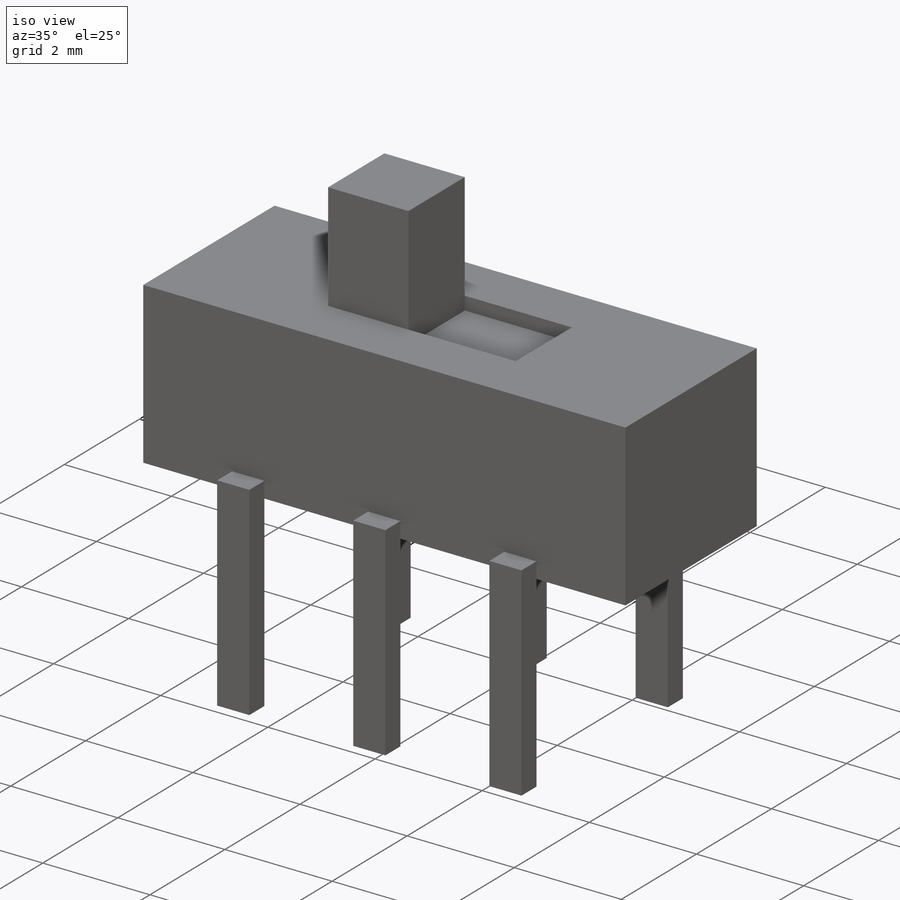
[diagram: iso view]
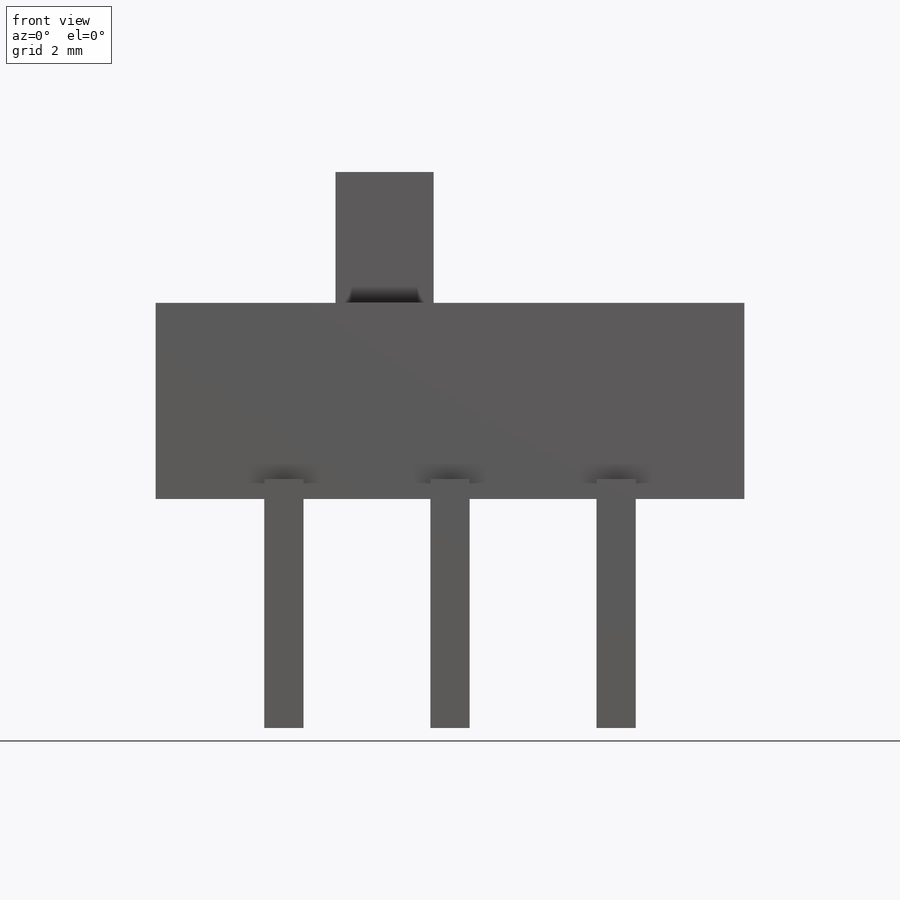
[diagram: front view]
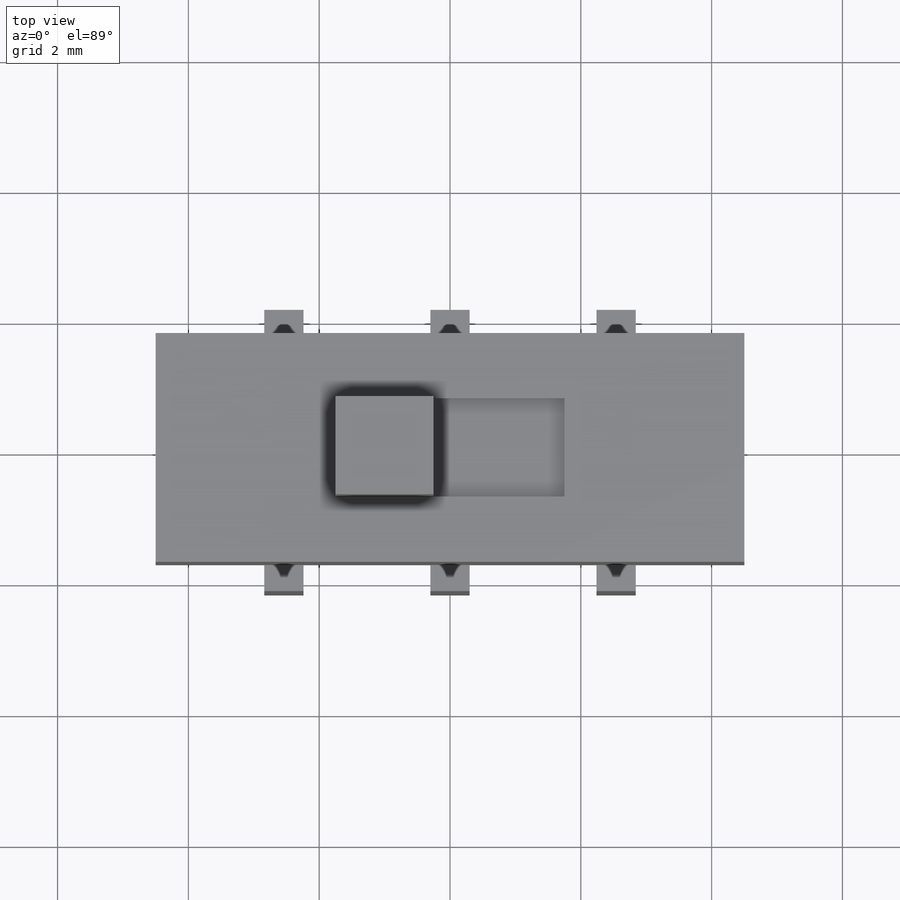
[diagram: top view]
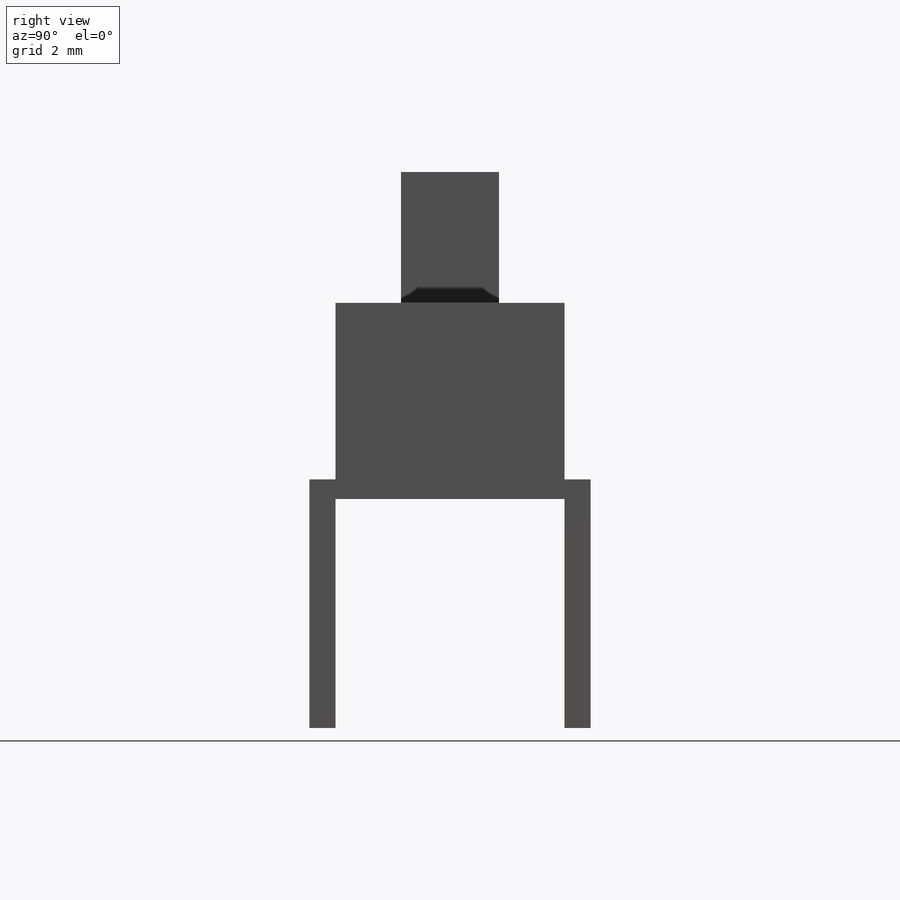
[diagram: right view]
SOLIDWORKS PART (.sldprt)
format: sldprt  version: not decoded by parser v0  size: 224,256 bytes
history: native  units: mm
features: sketch x4, plane x3, extrude x3, material x1, cut_extrude x1, pattern_linear x1, mirror x1 (+8 scaffold rows collapsed)
feature tree (22):
  scaffold x8  (default folders/planes/origin — collapsed)
  material  "Matériau <non spécifié>"
  plane  "Plan de face"
  plane  "Plan de dessus"
  plane  "Plan de droite"
  sketch  "Esquisse1"  dims[D1=9.0mm D2=3.5mm]
  extrude  "Boss.-Extru.1"  Depth=3mm
  sketch  "Esquisse2"  dims[D1=1.5mm D2=0.25mm]
  extrude  "Boss.-Extru.2"  Depth=2mm
  sketch  "Esquisse3"  dims[D1=2.0mm]
  cut_extrude  "Enlèv. mat.-Extru.1"  Depth=0.25mm
  sketch  "Esquisse4"  dims[D1=0.6mm D2=2.24mm D3=0.3mm D4=3.5mm]
  extrude  "Boss.-Extru.3"  Depth=0.4mm
  pattern_linear  "Répétition linéaire1"  Count1=3 Count2=1 Spacing1=2.54mm Spacing2=50mm
  mirror  "Symétrie1"
decode coverage: 9 of 10 modeling features carry decoded parameters
note: suppression state not decoded; provenance and decode notes live in map.json
